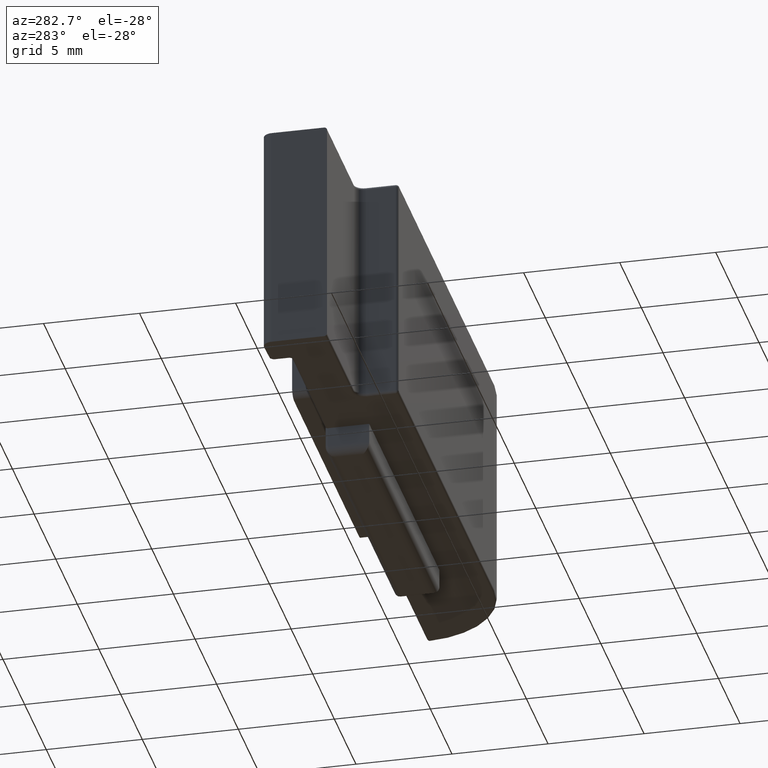
[diagram: clean part render]
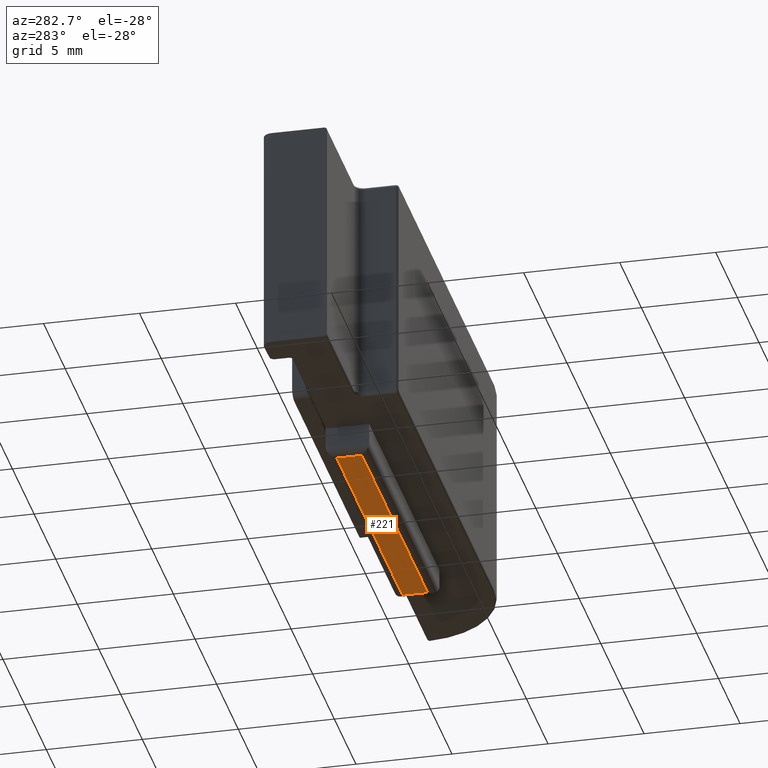
[diagram: same view with one face highlighted and labeled with its STEP entity id]
A machine part, auxiliary view. The second image highlights one B-rep face of the part: STEP entity #221.
In plain terms, the highlighted planar face has unit normal (0, -0, -1).
Its self-contained STEP definition (entity closure, byte-faithful):
#106 = VECTOR ( 'NONE', #1785, 1000.000000000000000 ) ;
#197 = CARTESIAN_POINT ( 'NONE',  ( 18.70000000000005613, -1.099999999999996758, -1.500000000000001332 ) ) ;
#221 = ADVANCED_FACE ( 'NONE', ( #1021 ), #2147, .T. ) ;
#260 = EDGE_CURVE ( 'NONE', #752, #1498, #1655, .T. ) ;
#340 = ORIENTED_EDGE ( 'NONE', *, *, #260, .T. ) ;
#440 = DIRECTION ( 'NONE',  ( 1.663310252921209204E-33, -1.000000000000000000, -0.000000000000000000 ) ) ;
#469 = EDGE_CURVE ( 'NONE', #1455, #1510, #645, .T. ) ;
#482 = LINE ( 'NONE', #759, #106 ) ;
#522 = CARTESIAN_POINT ( 'NONE',  ( 3.500000000000001332, -1.099999999999996758, -1.500000000000001332 ) ) ;
#550 = AXIS2_PLACEMENT_3D ( 'NONE', #1289, #1820, #985 ) ;
#593 = VECTOR ( 'NONE', #440, 1000.000000000000000 ) ;
#624 = VECTOR ( 'NONE', #798, 1000.000000000000000 ) ;
#645 = LINE ( 'NONE', #2047, #1707 ) ;
#692 = ORIENTED_EDGE ( 'NONE', *, *, #1596, .T. ) ;
#709 = EDGE_CURVE ( 'NONE', #1498, #1455, #482, .T. ) ;
#752 = VERTEX_POINT ( 'NONE', #1143 ) ;
#759 = CARTESIAN_POINT ( 'NONE',  ( 3.500000000000001332, -0.6000000000000033085, -1.500000000000001332 ) ) ;
#798 = DIRECTION ( 'NONE',  ( -1.000000000000000000, 1.338521200599383257E-16, -0.000000000000000000 ) ) ;
#985 = DIRECTION ( 'NONE',  ( -1.000000000000000000, -2.298859303523532590E-32, 0.000000000000000000 ) ) ;
#1021 = FACE_OUTER_BOUND ( 'NONE', #2019, .T. ) ;
#1056 = CARTESIAN_POINT ( 'NONE',  ( 3.500000000000004885, -2.399999999999999467, -1.500000000000001332 ) ) ;
#1143 = CARTESIAN_POINT ( 'NONE',  ( 18.70000000000005613, -2.399999999999999467, -1.500000000000001332 ) ) ;
#1289 = CARTESIAN_POINT ( 'NONE',  ( 0.000000000000000000, 0.000000000000000000, -1.500000000000001332 ) ) ;
#1455 = VERTEX_POINT ( 'NONE', #522 ) ;
#1478 = ORIENTED_EDGE ( 'NONE', *, *, #709, .T. ) ;
#1498 = VERTEX_POINT ( 'NONE', #1056 ) ;
#1510 = VERTEX_POINT ( 'NONE', #197 ) ;
#1596 = EDGE_CURVE ( 'NONE', #1510, #752, #2010, .T. ) ;
#1655 = LINE ( 'NONE', #1977, #624 ) ;
#1707 = VECTOR ( 'NONE', #1728, 1000.000000000000000 ) ;
#1728 = DIRECTION ( 'NONE',  ( 1.000000000000000000, -3.446287897283827838E-18, 0.000000000000000000 ) ) ;
#1785 = DIRECTION ( 'NONE',  ( -1.885568995626967984E-16, 1.000000000000000000, 0.000000000000000000 ) ) ;
#1820 = DIRECTION ( 'NONE',  ( 1.416781430588525137E-64, -6.162975822039132834E-33, -1.000000000000000000 ) ) ;
#1967 = ORIENTED_EDGE ( 'NONE', *, *, #469, .T. ) ;
#1972 = CARTESIAN_POINT ( 'NONE',  ( 18.70000000000005613, 0.000000000000000000, -1.500000000000001332 ) ) ;
#1977 = CARTESIAN_POINT ( 'NONE',  ( 0.000000000000000000, -2.399999999999999467, -1.500000000000001332 ) ) ;
#2010 = LINE ( 'NONE', #1972, #593 ) ;
#2019 = EDGE_LOOP ( 'NONE', ( #340, #1478, #1967, #692 ) ) ;
#2047 = CARTESIAN_POINT ( 'NONE',  ( 19.20000000000005613, -1.099999999999996758, -1.500000000000001332 ) ) ;
#2147 = PLANE ( 'NONE',  #550 ) ;